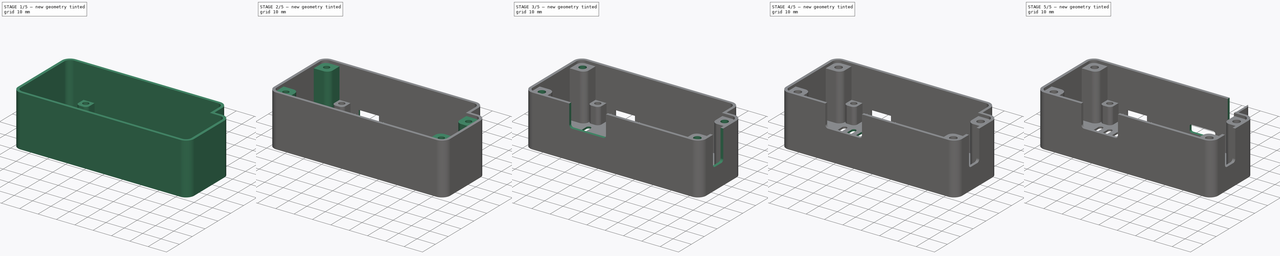
[diagram: build sequence overview — one tinted view per stage of 5, left to right]
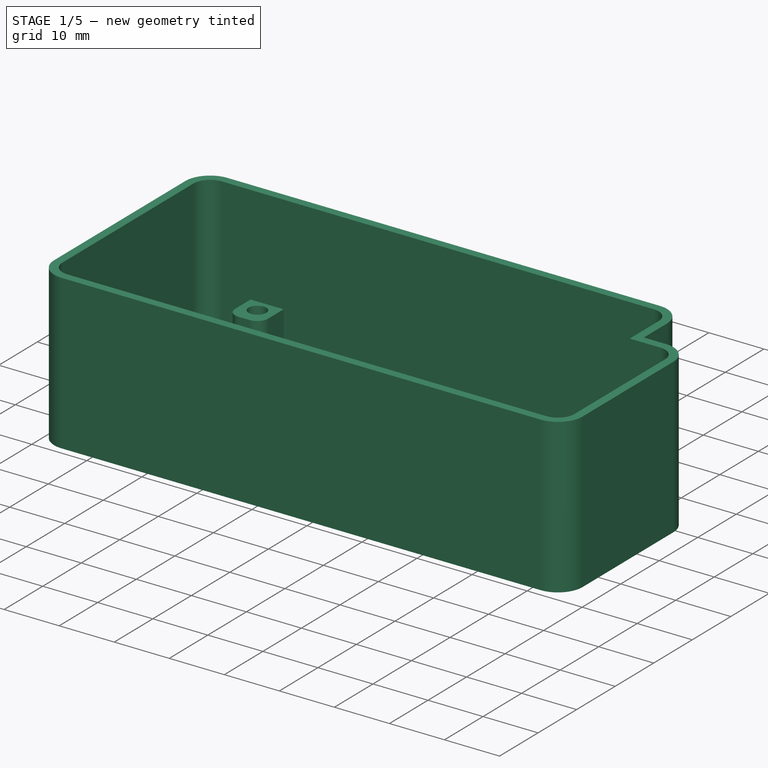
[diagram: stage 1 of 5 — iso view after this stage's code; geometry added in this stage tinted green]
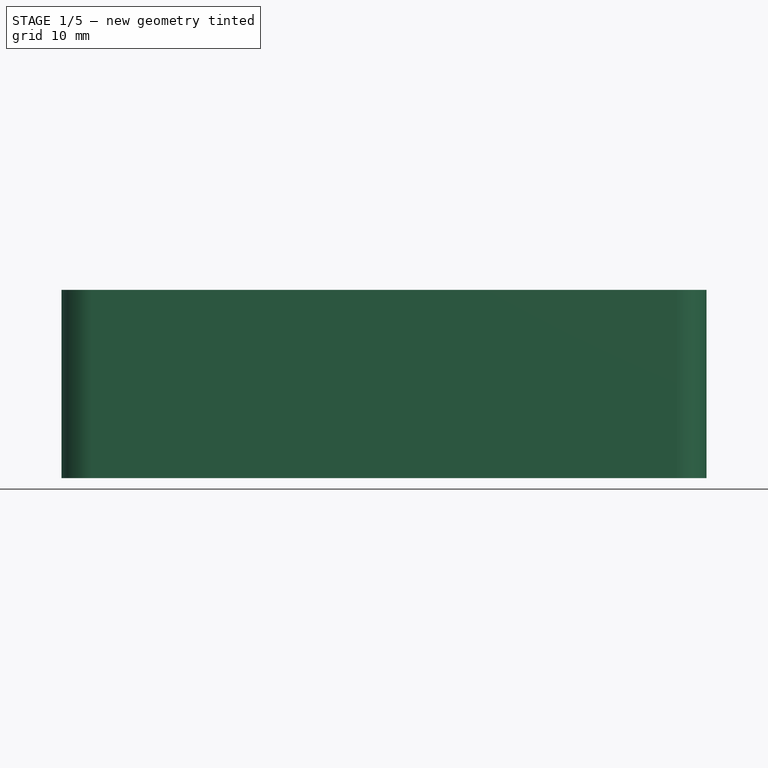
[diagram: stage 1 of 5 — front view after this stage's code; geometry added in this stage tinted green]
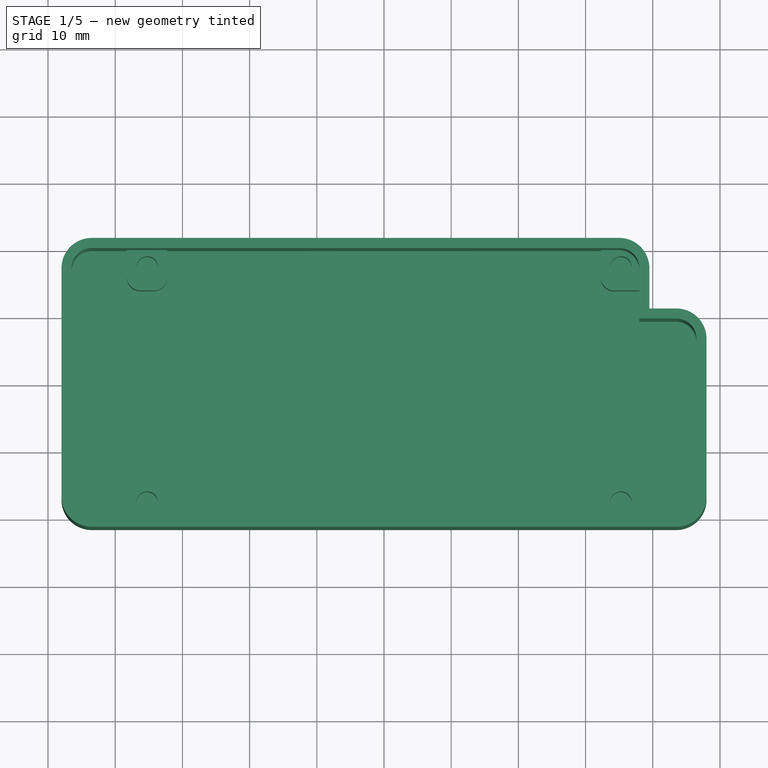
[diagram: stage 1 of 5 — top view after this stage's code; geometry added in this stage tinted green]
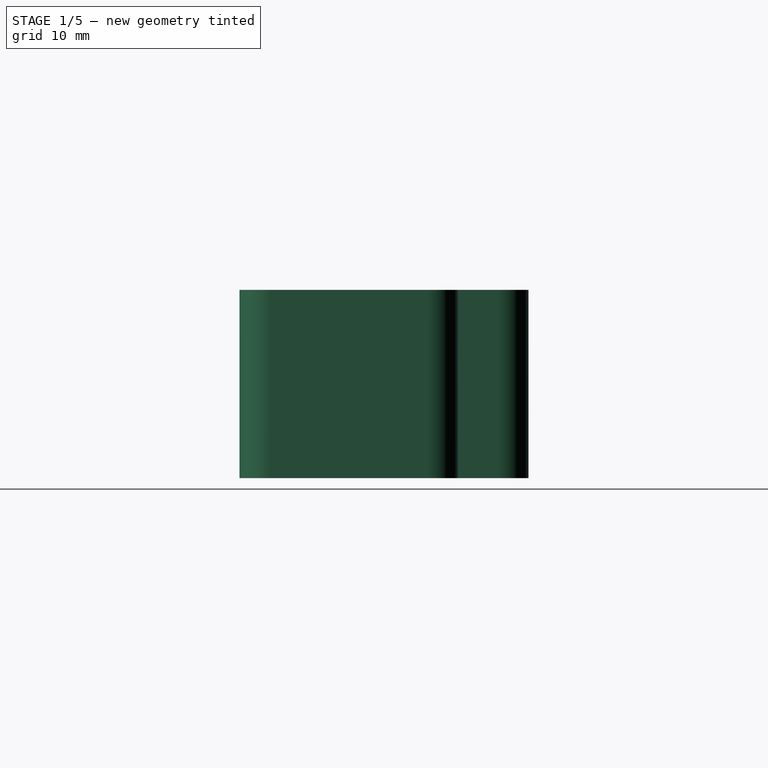
[diagram: stage 1 of 5 — right view after this stage's code; geometry added in this stage tinted green]
FCSTD DOCUMENT  (FreeCAD 0.20R29410 (Git))
Label: Full-Enclosure-BOTTOM
License: All rights reserved
LicenseURL: http://en.wikipedia.org/wiki/All_rights_reserved
objects: Sketcher::SketchObject×15, PartDesign::Pocket×11, PartDesign::Pad×4, PartDesign::LinearPattern×1, PartDesign::Body×1
note: 47 computed .brp shape members not serialized (recipe doc carries the construction recipe); baked Part::Feature solids carry a one-line shape summary decoded from their .brp

FEATURE [Sketcher::SketchObject] Sketch
  FullyConstrained = true
  MapMode = 5
  Support = -> [XY_Plane]
  sketch-geometry (23):
    g0: LineSegment StartX=-35 StartY=20 StartZ=0 EndX=35 EndY=20 EndZ=0
    g1: LineSegment StartX=38 StartY=17 StartZ=0 EndX=38 EndY=-17 EndZ=0
    g2: LineSegment StartX=35 StartY=-20 StartZ=0 EndX=-35 EndY=-20 EndZ=0
    g3: LineSegment StartX=-38 StartY=-17 StartZ=0 EndX=-38 EndY=17 EndZ=0
    g4: ArcOfCircle CenterX=-35 CenterY=17 CenterZ=0 NormalX=0 NormalY=0 NormalZ=1 AngleXU=0 Radius=3 StartAngle=1.5708 EndAngle=3.14159
    g5: ArcOfCircle CenterX=35 CenterY=17 CenterZ=0 NormalX=0 NormalY=0 NormalZ=1 AngleXU=0 Radius=3 StartAngle=-1.85292e-11 EndAngle=1.5708
    g6: ArcOfCircle CenterX=35 CenterY=-17 CenterZ=0 NormalX=0 NormalY=0 NormalZ=1 AngleXU=0 Radius=3 StartAngle=4.71239 EndAngle=6.28319
    g7: ArcOfCircle CenterX=-35 CenterY=-17 CenterZ=0 NormalX=0 NormalY=0 NormalZ=1 AngleXU=0 Radius=3 StartAngle=3.14159 EndAngle=4.71239
    g8: LineSegment StartX=48 StartY=6.5 StartZ=0 EndX=48 EndY=-17 EndZ=0
    g9: LineSegment StartX=43.5 StartY=-21.5 StartZ=0 EndX=-43.5 EndY=-21.5 EndZ=0
    g10: LineSegment StartX=-48 StartY=-17 StartZ=0 EndX=-48 EndY=17 EndZ=0
    g11: ArcOfCircle CenterX=43.5 CenterY=6.5 CenterZ=0 NormalX=0 NormalY=0 NormalZ=1 AngleXU=0 Radius=4.5 StartAngle=-2.0544e-12 EndAngle=1.5708
    g12: ArcOfCircle CenterX=43.5 CenterY=-17 CenterZ=0 NormalX=0 NormalY=0 NormalZ=1 AngleXU=0 Radius=4.5 StartAngle=4.71239 EndAngle=6.28319
    g13: GeomPoint X=48 Y=-21.5 Z=0
    g14: ArcOfCircle CenterX=-43.5 CenterY=-17 CenterZ=0 NormalX=0 NormalY=0 NormalZ=1 AngleXU=0 Radius=4.5 StartAngle=3.14159 EndAngle=4.71239
    g15: GeomPoint X=-48 Y=-21.5 Z=0
    g16: ArcOfCircle CenterX=-43.5 CenterY=17 CenterZ=0 NormalX=0 NormalY=0 NormalZ=1 AngleXU=0 Radius=4.5 StartAngle=1.5708 EndAngle=3.14159
    g17: GeomPoint X=-48 Y=21.5 Z=0
    g18: LineSegment StartX=43.5 StartY=11 StartZ=0 EndX=39.5 EndY=11 EndZ=0
    g19: LineSegment StartX=39.5 StartY=11 StartZ=0 EndX=39.5 EndY=17 EndZ=0
    g20: LineSegment StartX=35 StartY=21.5 StartZ=0 EndX=-43.5 EndY=21.5 EndZ=0
    g21: ArcOfCircle CenterX=35 CenterY=17 CenterZ=0 NormalX=0 NormalY=0 NormalZ=1 AngleXU=0 Radius=4.5 StartAngle=-2.2915e-12 EndAngle=1.5708
    g22: GeomPoint X=39.5 Y=21.5 Z=0
  constraints (53):
    c: Horizontal(g0)
    c: Horizontal(g2)
    c: Vertical(g1)
    c: Vertical(g3)
    c: Tangent(g3,g4) = 1.5708
    c: Tangent(g0,g4) = 1.5708
    c: Tangent(g0,g5) = 1.5708
    c: Tangent(g1,g5) = 1.5708
    c: Tangent(g2,g6) = 1.5708
    c: Tangent(g1,g6) = 1.5708
    c: Tangent(g3,g7) = 1.5708
    c: Tangent(g2,g7) = 1.5708
    c: Equal(g7,g4)
    c: Equal(g4,g5)
    c: Equal(g5,g6)
    c: Radius(g5) = 3
    c: Symmetric(g4,g6,g-1)
    c: DistanceY(g2,g0) = 40
    c: DistanceX(g3,g1) = 76
    c: Horizontal(g9)
    c: Vertical(g8)
    c: Vertical(g10)
    c: Symmetric(g17,g13,g-1)
    c: Tangent(g8,g11) = 1.5708
    c: PointOnObject(g13,g8)
    c: PointOnObject(g13,g9)
    c: Tangent(g8,g12) = 1.5708
    c: Tangent(g9,g12) = 1.5708
    c: PointOnObject(g15,g10)
    c: PointOnObject(g15,g9)
    c: Tangent(g10,g14) = 1.5708
    c: Tangent(g9,g14) = 1.5708
    c: PointOnObject(g17,g10)
    c: Tangent(g10,g16) = 1.5708
    c: Equal(g11,g12)
    c: Equal(g12,g14)
    c: Equal(g14,g16)
    c: Horizontal(g10,g3)
    c: DistanceX(g1,g8) = 10
    c: Vertical(g11,g11)
    c: Tangent(g11,g18) = -1.5708
    c: Coincident(g18,g19)
    c: Coincident(g16,g20)
    c: Horizontal(g20)
    c: Vertical(g19)
    c: PointOnObject(g22,g20)
    c: PointOnObject(g22,g19)
    c: Tangent(g20,g21) = -1.5708
    c: Tangent(g19,g21) = -1.5708
    c: Coincident(g21,g5)
    c: DistanceY(g0,g20) = 1.5
    c: DistanceY(g19,g19) = 6
    c: Symmetric(g16,g9,g-1)
FEATURE [PartDesign::Pad] Pad
  Direction = (0,0,1)
  Length = 28
  Length2 = 10
  Profile = -> Sketch
  ReferenceAxis = -> Sketch [N_Axis]
  Type = 0
FEATURE [Sketcher::SketchObject] Sketch001
  ExternalGeometry = -> [Pad]
  FullyConstrained = true
  MapMode = 5
  Placement = pos=(0,0,28) rot=(0,0,1;0rad)
  Support = -> [Pad]
  sketch-geometry (14):
    g0: LineSegment StartX=-43.5 StartY=20 StartZ=0 EndX=35 EndY=20 EndZ=0
    g1: LineSegment StartX=43.5 StartY=-20 StartZ=0 EndX=-43.5 EndY=-20 EndZ=0
    g2: LineSegment StartX=-46.5 StartY=-17 StartZ=0 EndX=-46.5 EndY=17 EndZ=0
    g3: ArcOfCircle CenterX=-43.5 CenterY=17 CenterZ=0 NormalX=0 NormalY=0 NormalZ=1 AngleXU=0 Radius=3 StartAngle=1.5708 EndAngle=3.14159
    g4: GeomPoint X=-46.5 Y=20 Z=0
    g5: ArcOfCircle CenterX=-43.5 CenterY=-17 CenterZ=0 NormalX=0 NormalY=0 NormalZ=1 AngleXU=0 Radius=3 StartAngle=3.14159 EndAngle=4.71239
    g6: GeomPoint X=-46.5 Y=-20 Z=0
    g7: ArcOfCircle CenterX=43.5 CenterY=-17 CenterZ=0 NormalX=0 NormalY=0 NormalZ=1 AngleXU=0 Radius=3 StartAngle=4.71239 EndAngle=6.28319
    g8: ArcOfCircle CenterX=35 CenterY=17 CenterZ=0 NormalX=0 NormalY=0 NormalZ=1 AngleXU=0 Radius=3 StartAngle=0 EndAngle=1.5708
    g9: LineSegment StartX=38 StartY=17 StartZ=0 EndX=38 EndY=9.5 EndZ=0
    g10: LineSegment StartX=38 StartY=9.5 StartZ=0 EndX=43.5 EndY=9.5 EndZ=0
    g11: LineSegment StartX=46.5 StartY=6.5 StartZ=0 EndX=46.5 EndY=-17 EndZ=0
    g12: ArcOfCircle CenterX=43.5 CenterY=6.5 CenterZ=0 NormalX=0 NormalY=0 NormalZ=1 AngleXU=0 Radius=3 StartAngle=0 EndAngle=1.5708
    g13: GeomPoint X=46.5 Y=9.5 Z=0
  constraints (30):
    c: Horizontal(g0)
    c: Horizontal(g1)
    c: Vertical(g2)
    c: PointOnObject(g4,g2)
    c: PointOnObject(g4,g0)
    c: Tangent(g2,g3) = 1.5708
    c: Tangent(g0,g3) = 1.5708
    c: PointOnObject(g6,g2)
    c: PointOnObject(g6,g1)
    c: Tangent(g2,g5) = 1.5708
    c: Tangent(g1,g5) = 1.5708
    c: Tangent(g1,g7) = 1.5708
    c: Tangent(g0,g8) = 1.5708
    c: DistanceY(g1,g0) = 40
    c: Symmetric(g3,g5,g-1)
    c: Horizontal(g7,g7)
    c: Horizontal(g8,g8)
    c: Tangent(g8,g9) = 1.5708
    c: Coincident(g9,g10)
    c: Horizontal(g10)
    c: Coincident(g11,g7)
    c: Vertical(g11)
    c: PointOnObject(g13,g10)
    c: PointOnObject(g13,g11)
    c: Tangent(g10,g12) = 1.5708
    c: Tangent(g11,g12) = 1.5708
    c: Coincident(g-3,g8)
    c: Coincident(g3,g-4)
    c: Coincident(g7,g-5)
    c: Coincident(g12,g-6)
FEATURE [PartDesign::Pocket] Pocket
  BaseFeature = -> Pad
  Direction = (0,0,-1)
  Length = 27
  Length2 = 5
  Profile = -> Sketch001
  ReferenceAxis = -> Sketch001 [N_Axis]
  Type = 0
FEATURE [Sketcher::SketchObject] Sketch002
  ExternalGeometry = -> [Pocket]
  FullyConstrained = true
  MapMode = 5
  Placement = pos=(0,0,1) rot=(0,0,1;0rad)
  Support = -> [Pocket]
  sketch-geometry (37):
    g0: LineSegment StartX=-38.25 StartY=20 StartZ=0 EndX=-32.25 EndY=20 EndZ=0
    g1: LineSegment StartX=-32.25 StartY=20 StartZ=0 EndX=-32.25 EndY=16 EndZ=0
    g2: LineSegment StartX=-34.25 StartY=14 StartZ=0 EndX=-36.25 EndY=14 EndZ=0
    g3: LineSegment StartX=-38.25 StartY=16 StartZ=0 EndX=-38.25 EndY=20 EndZ=0
    g4: LineSegment StartX=-36.25 StartY=-14 StartZ=0 EndX=-34.25 EndY=-14 EndZ=0
    g5: LineSegment StartX=-32.25 StartY=-16 StartZ=0 EndX=-32.25 EndY=-20 EndZ=0
    g6: LineSegment StartX=-32.25 StartY=-20 StartZ=0 EndX=-38.25 EndY=-20 EndZ=0
    g7: LineSegment StartX=-38.25 StartY=-20 StartZ=0 EndX=-38.25 EndY=-16 EndZ=0
    g8: LineSegment StartX=32.25 StartY=20 StartZ=0 EndX=35 EndY=20 EndZ=0
    g9: LineSegment StartX=38 StartY=17 StartZ=0 EndX=38 EndY=14 EndZ=0
    g10: LineSegment StartX=38 StartY=14 StartZ=0 EndX=34.25 EndY=14 EndZ=0
    g11: LineSegment StartX=32.25 StartY=16 StartZ=0 EndX=32.25 EndY=20 EndZ=0
    g12: LineSegment StartX=34.25 StartY=-14 StartZ=0 EndX=36.25 EndY=-14 EndZ=0
    g13: LineSegment StartX=38.25 StartY=-16 StartZ=0 EndX=38.25 EndY=-20 EndZ=0
    g14: LineSegment StartX=38.25 StartY=-20 StartZ=0 EndX=32.25 EndY=-20 EndZ=0
    g15: LineSegment StartX=32.25 StartY=-20 StartZ=0 EndX=32.25 EndY=-16 EndZ=0
    g16: ArcOfCircle CenterX=-36.25 CenterY=16 CenterZ=0 NormalX=0 NormalY=0 NormalZ=1 AngleXU=0 Radius=2 StartAngle=3.14159 EndAngle=4.71239
    g17: GeomPoint X=-38.25 Y=14 Z=0
    g18: ArcOfCircle CenterX=-34.25 CenterY=16 CenterZ=0 NormalX=0 NormalY=0 NormalZ=1 AngleXU=0 Radius=2 StartAngle=4.71239 EndAngle=6.28319
    g19: GeomPoint X=-32.25 Y=14 Z=0
    g20: ArcOfCircle CenterX=-36.25 CenterY=-16 CenterZ=0 NormalX=0 NormalY=0 NormalZ=1 AngleXU=0 Radius=2 StartAngle=1.5708 EndAngle=3.14159
    g21: GeomPoint X=-38.25 Y=-14 Z=0
    g22: ArcOfCircle CenterX=-34.25 CenterY=-16 CenterZ=0 NormalX=0 NormalY=0 NormalZ=1 AngleXU=0 Radius=2 StartAngle=0 EndAngle=1.5708
    g23: GeomPoint X=-32.25 Y=-14 Z=0
    g24: ArcOfCircle CenterX=34.25 CenterY=-16 CenterZ=0 NormalX=0 NormalY=0 NormalZ=1 AngleXU=0 Radius=2 StartAngle=1.5708 EndAngle=3.14159
    g25: GeomPoint X=32.25 Y=-14 Z=0
    g26: ArcOfCircle CenterX=36.25 CenterY=-16 CenterZ=0 NormalX=0 NormalY=0 NormalZ=1 AngleXU=0 Radius=2 StartAngle=-9e-16 EndAngle=1.5708
    g27: GeomPoint X=38.25 Y=-14 Z=0
    g28: ArcOfCircle CenterX=34.25 CenterY=16 CenterZ=0 NormalX=0 NormalY=0 NormalZ=1 AngleXU=0 Radius=2 StartAngle=3.14159 EndAngle=4.71239
    g29: GeomPoint X=32.25 Y=14 Z=0
    g30: ArcOfCircle CenterX=35 CenterY=17 CenterZ=0 NormalX=0 NormalY=0 NormalZ=1 AngleXU=0 Radius=3 StartAngle=0 EndAngle=1.5708
    g31: GeomPoint X=38 Y=20 Z=0
    g32: LineSegment StartX=-35.25 StartY=20 StartZ=0 EndX=-35.25 EndY=-20 EndZ=0
    g33: Circle CenterX=-35.25 CenterY=17.5 CenterZ=0 NormalX=0 NormalY=0 NormalZ=1 AngleXU=0 Radius=1.6
    g34: Circle CenterX=35.25 CenterY=17.5 CenterZ=0 NormalX=0 NormalY=0 NormalZ=1 AngleXU=0 Radius=1.6
    g35: Circle CenterX=-35.25 CenterY=-17.5 CenterZ=0 NormalX=0 NormalY=0 NormalZ=1 AngleXU=0 Radius=1.6
    g36: Circle CenterX=35.25 CenterY=-17.5 CenterZ=0 NormalX=0 NormalY=0 NormalZ=1 AngleXU=0 Radius=1.6
  constraints (88):
    c: Coincident(g0,g1)
    c: Coincident(g3,g0)
    c: Horizontal(g0)
    c: Horizontal(g2)
    c: Vertical(g1)
    c: Vertical(g3)
    c: Coincident(g5,g6)
    c: Coincident(g6,g7)
    c: Horizontal(g4)
    c: Horizontal(g6)
    c: Vertical(g5)
    c: Vertical(g7)
    c: Coincident(g9,g10)
    c: Coincident(g11,g8)
    c: Horizontal(g10)
    c: Vertical(g9)
    c: Vertical(g11)
    c: Coincident(g13,g14)
    c: Coincident(g14,g15)
    c: Horizontal(g12)
    c: Horizontal(g14)
    c: Vertical(g13)
    c: Vertical(g15)
    c: PointOnObject(g17,g3)
    c: PointOnObject(g17,g2)
    c: Tangent(g3,g16) = 1.5708
    c: Tangent(g2,g16) = 1.5708
    c: PointOnObject(g19,g1)
    c: PointOnObject(g19,g2)
    c: Tangent(g1,g18) = 1.5708
    c: Tangent(g2,g18) = 1.5708
    c: PointOnObject(g21,g7)
    c: PointOnObject(g21,g4)
    c: Tangent(g7,g20) = 1.5708
    c: Tangent(g4,g20) = 1.5708
    c: PointOnObject(g23,g4)
    c: PointOnObject(g23,g5)
    c: Tangent(g4,g22) = 1.5708
    c: Tangent(g5,g22) = 1.5708
    c: PointOnObject(g25,g15)
    c: PointOnObject(g25,g12)
    c: Tangent(g15,g24) = 1.5708
    c: Tangent(g12,g24) = 1.5708
    c: PointOnObject(g27,g12)
    c: PointOnObject(g27,g13)
    c: Tangent(g12,g26) = 1.5708
    c: Tangent(g13,g26) = 1.5708
    c: PointOnObject(g29,g11)
    c: PointOnObject(g29,g10)
    c: Tangent(g11,g28) = 1.5708
    c: Tangent(g10,g28) = 1.5708
    c: PointOnObject(g31,g8)
    c: PointOnObject(g31,g9)
    c: Tangent(g8,g30) = 1.5708
    c: Tangent(g9,g30) = 1.5708
    c: Coincident(g-3,g8)
    c: Coincident(g30,g-3)
    c: Equal(g18,g16)
    c: Equal(g16,g20)
    c: Equal(g20,g22)
    c: Equal(g22,g24)
    c: Equal(g24,g26)
    c: Equal(g26,g28)
    c: Vertical(g32)
    c: Symmetric(g6,g5,g32)
    c: Symmetric(g0,g0,g32)
    c: Equal(g6,g14)
    c: Horizontal(g14,g5)
    c: Vertical(g25,g29)
    c: Symmetric(g4,g2,g-1)
    c: PointOnObject(g5,g-4)
    c: PointOnObject(g0,g-5)
    c: Symmetric(g23,g25,g-2)
    c: Horizontal(g29,g19)
    c: DistanceY(g6,g4) = 6
    c: DistanceX(g6,g6) = 6
    c: Equal(g36,g35)
    c: Equal(g35,g33)
    c: Equal(g33,g34)
    c: Diameter(g35) = 3.2
    c: Symmetric(g33,g36,g-1)
    c: Symmetric(g34,g35,g-1)
    c: Vertical(g34,g36)
    c: Horizontal(g34,g33)
    c: PointOnObject(g35,g32)
    c: DistanceX(g33,g34) = 70.5
    c: DistanceY(g36,g30) = 34.5
    c: Radius(g22) = 2
FEATURE [PartDesign::Pad] Pad001
  BaseFeature = -> Pocket
  Direction = (0,0,1)
  Length = 9
  Length2 = 10
  Profile = -> Sketch002
  ReferenceAxis = -> Sketch002 [N_Axis]
  Type = 0
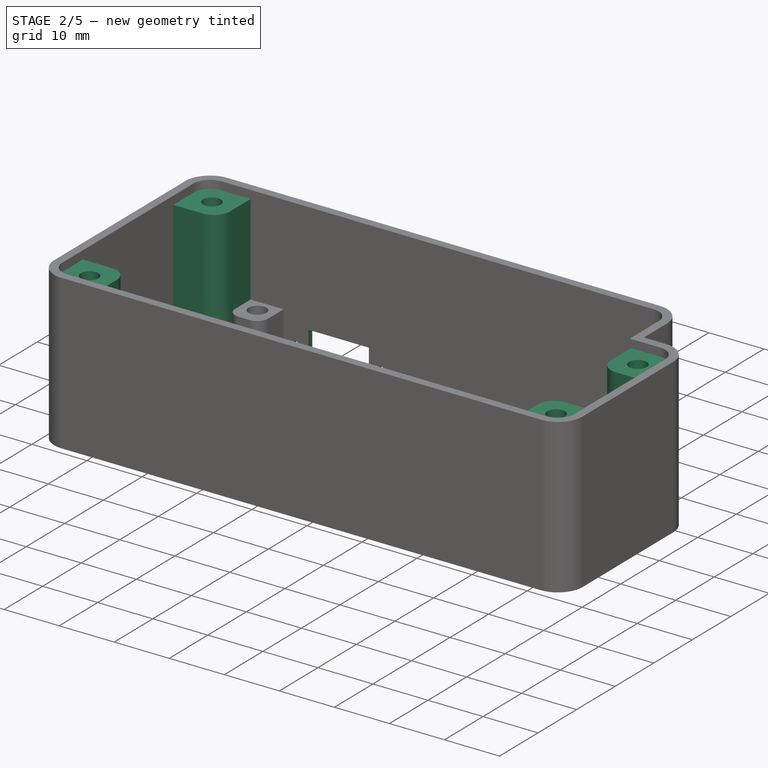
[diagram: stage 2 of 5 — iso view after this stage's code; geometry added in this stage tinted green]
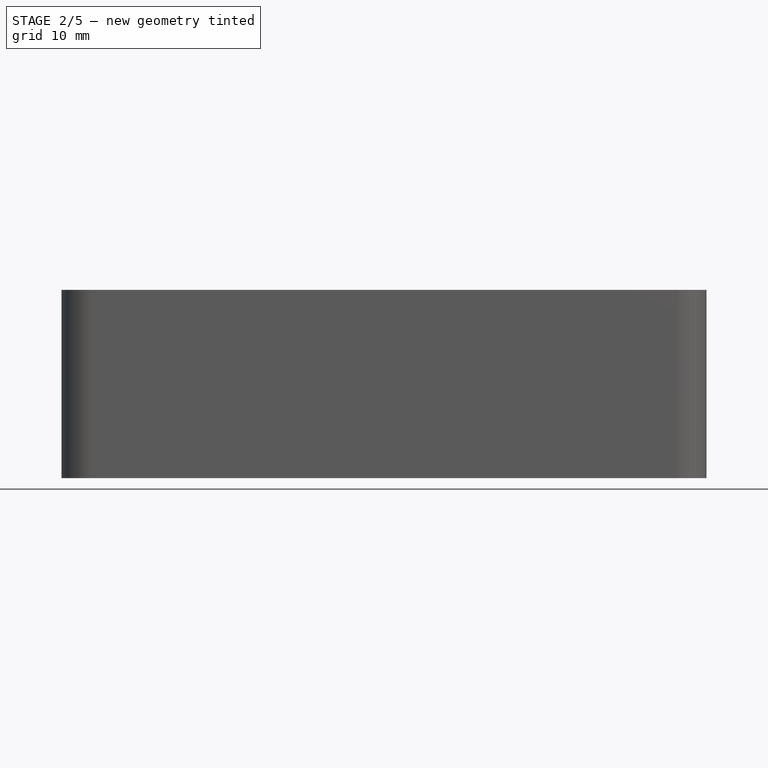
[diagram: stage 2 of 5 — front view after this stage's code; geometry added in this stage tinted green]
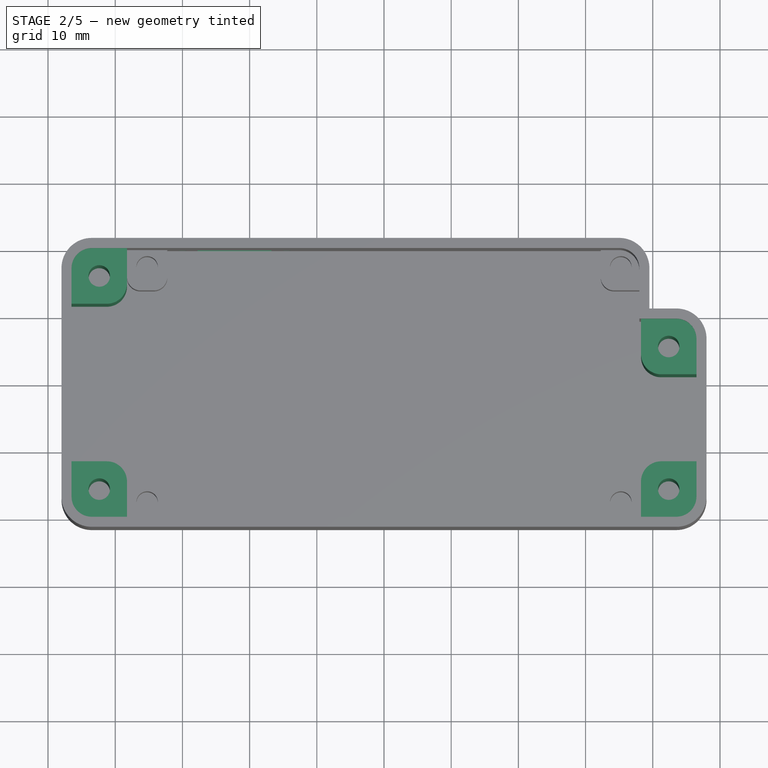
[diagram: stage 2 of 5 — top view after this stage's code; geometry added in this stage tinted green]
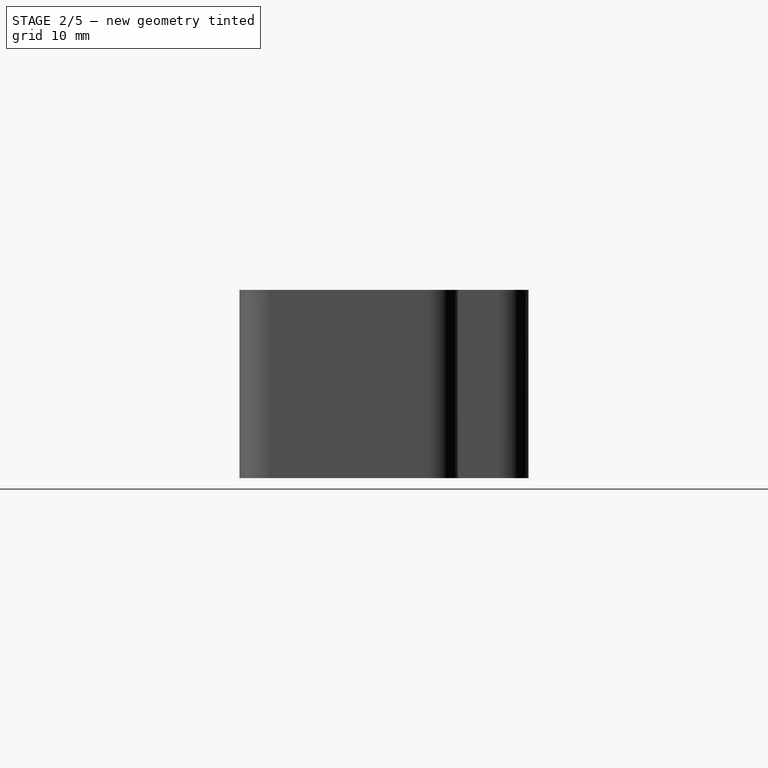
[diagram: stage 2 of 5 — right view after this stage's code; geometry added in this stage tinted green]
FEATURE [Sketcher::SketchObject] Sketch004
  ExternalGeometry = -> [Pad001,Sketch002]
  FullyConstrained = true
  MapMode = 5
  Placement = pos=(0,0,1) rot=(0,0,1;0rad)
  Support = -> [Pad001]
  sketch-geometry (38):
    g0: LineSegment StartX=-43.5 StartY=20 StartZ=0 EndX=-38.25 EndY=20 EndZ=0
    g1: LineSegment StartX=-38.25 StartY=20 StartZ=0 EndX=-38.25 EndY=14.7246 EndZ=0
    g2: LineSegment StartX=-41.25 StartY=11.7246 StartZ=0 EndX=-46.5 EndY=11.7246 EndZ=0
    g3: LineSegment StartX=-46.5 StartY=11.7246 StartZ=0 EndX=-46.5 EndY=17 EndZ=0
    g4: LineSegment StartX=-41.25 StartY=-11.7246 StartZ=0 EndX=-46.5 EndY=-11.7246 EndZ=0
    g5: LineSegment StartX=-46.5 StartY=-11.7246 StartZ=0 EndX=-46.5 EndY=-17 EndZ=0
    g6: LineSegment StartX=-43.5 StartY=-20 StartZ=0 EndX=-38.25 EndY=-20 EndZ=0
    g7: LineSegment StartX=-38.25 StartY=-20 StartZ=0 EndX=-38.25 EndY=-14.7246 EndZ=0
    g8: LineSegment StartX=41.25 StartY=-11.7246 StartZ=0 EndX=46.5 EndY=-11.7246 EndZ=0
    g9: LineSegment StartX=46.5 StartY=-11.7246 StartZ=0 EndX=46.5 EndY=-17 EndZ=0
    g10: LineSegment StartX=43.5 StartY=-20 StartZ=0 EndX=38.25 EndY=-20 EndZ=0
    g11: LineSegment StartX=38.25 StartY=-20 StartZ=0 EndX=38.25 EndY=-14.7246 EndZ=0
    g12: LineSegment StartX=46.5 StartY=6.5 StartZ=0 EndX=46.5 EndY=1.22459 EndZ=0
    g13: LineSegment StartX=46.5 StartY=1.22459 StartZ=0 EndX=41.25 EndY=1.22459 EndZ=0
    g14: LineSegment StartX=38.25 StartY=4.22459 StartZ=0 EndX=38.25 EndY=9.5 EndZ=0
    g15: ArcOfCircle CenterX=-43.5 CenterY=17 CenterZ=0 NormalX=0 NormalY=0 NormalZ=1 AngleXU=0 Radius=3 StartAngle=1.5708 EndAngle=3.14159
    g16: GeomPoint X=-46.5 Y=20 Z=0
    g17: ArcOfCircle CenterX=-41.25 CenterY=14.7246 CenterZ=0 NormalX=0 NormalY=0 NormalZ=1 AngleXU=0 Radius=3 StartAngle=4.71239 EndAngle=6.28319
    g18: GeomPoint X=-38.25 Y=11.7246 Z=0
    g19: ArcOfCircle CenterX=-43.5 CenterY=-17 CenterZ=0 NormalX=0 NormalY=0 NormalZ=1 AngleXU=0 Radius=3 StartAngle=3.14159 EndAngle=4.71239
    g20: GeomPoint X=-46.5 Y=-20 Z=0
    g21: ArcOfCircle CenterX=-41.25 CenterY=-14.7246 CenterZ=0 NormalX=0 NormalY=0 NormalZ=1 AngleXU=0 Radius=3 StartAngle=0 EndAngle=1.5708
    g22: GeomPoint X=-38.25 Y=-11.7246 Z=0
    g23: ArcOfCircle CenterX=41.25 CenterY=4.22459 CenterZ=0 NormalX=0 NormalY=0 NormalZ=1 AngleXU=0 Radius=3 StartAngle=3.14159 EndAngle=4.71239
    g24: GeomPoint X=38.25 Y=1.22459 Z=0
    g25: ArcOfCircle CenterX=43.5 CenterY=6.5 CenterZ=0 NormalX=0 NormalY=0 NormalZ=1 AngleXU=0 Radius=3 StartAngle=0 EndAngle=1.5708
    g26: GeomPoint X=46.5 Y=9.5 Z=0
    g27: ArcOfCircle CenterX=41.25 CenterY=-14.7246 CenterZ=0 NormalX=0 NormalY=0 NormalZ=1 AngleXU=0 Radius=3 StartAngle=1.5708 EndAngle=3.14159
    g28: GeomPoint X=38.25 Y=-11.7246 Z=0
    g29: ArcOfCircle CenterX=43.5 CenterY=-17 CenterZ=0 NormalX=0 NormalY=0 NormalZ=1 AngleXU=0 Radius=3 StartAngle=4.71239 EndAngle=6.28319
    g30: GeomPoint X=46.5 Y=-20 Z=0
    g31: LineSegment StartX=-42.375 StartY=20 StartZ=0 EndX=-42.375 EndY=-20 EndZ=0
    g32: LineSegment StartX=42.375 StartY=9.5 StartZ=0 EndX=42.375 EndY=-20 EndZ=0
    g33: Circle CenterX=-42.375 CenterY=15.8623 CenterZ=0 NormalX=0 NormalY=0 NormalZ=1 AngleXU=0 Radius=1.6
    g34: Circle CenterX=-42.375 CenterY=-15.8623 CenterZ=0 NormalX=0 NormalY=0 NormalZ=1 AngleXU=0 Radius=1.6
    g35: Circle CenterX=42.375 CenterY=-15.8623 CenterZ=0 NormalX=0 NormalY=0 NormalZ=1 AngleXU=0 Radius=1.6
    g36: Circle CenterX=42.375 CenterY=5.36229 CenterZ=0 NormalX=0 NormalY=0 NormalZ=1 AngleXU=0 Radius=1.6
    g37: LineSegment StartX=43.5 StartY=9.5 StartZ=0 EndX=38.25 EndY=9.5 EndZ=0
  constraints (87):
    c: Coincident(g0,g1)
    c: Coincident(g2,g3)
    c: Horizontal(g0)
    c: Horizontal(g2)
    c: Vertical(g1)
    c: Vertical(g3)
    c: Coincident(g4,g5)
    c: Coincident(g6,g7)
    c: Horizontal(g4)
    c: Horizontal(g6)
    c: Vertical(g5)
    c: Vertical(g7)
    c: Coincident(g8,g9)
    c: Coincident(g10,g11)
    c: Horizontal(g8)
    c: Horizontal(g10)
    c: Vertical(g11)
    c: Coincident(g12,g13)
    c: Horizontal(g13)
    c: Vertical(g12)
    c: Vertical(g14)
    c: PointOnObject(g16,g3)
    c: PointOnObject(g16,g0)
    c: Tangent(g3,g15) = 1.5708
    c: Tangent(g0,g15) = 1.5708
    c: PointOnObject(g18,g1)
    c: PointOnObject(g18,g2)
    c: Tangent(g1,g17) = 1.5708
    c: Tangent(g2,g17) = 1.5708
    c: PointOnObject(g20,g5)
    c: PointOnObject(g20,g6)
    c: Tangent(g5,g19) = -1.5708
    c: Tangent(g6,g19) = -1.5708
    c: PointOnObject(g22,g4)
    c: PointOnObject(g22,g7)
    c: Tangent(g4,g21) = -1.5708
    c: Tangent(g7,g21) = -1.5708
    c: PointOnObject(g24,g14)
    c: PointOnObject(g24,g13)
    c: Tangent(g14,g23) = 1.5708
    c: Tangent(g13,g23) = 1.5708
    c: PointOnObject(g26,g12)
    c: Tangent(g12,g25) = 1.5708
    c: PointOnObject(g28,g11)
    c: PointOnObject(g28,g8)
    c: Tangent(g11,g27) = 1.5708
    c: Tangent(g8,g27) = 1.5708
    c: PointOnObject(g30,g9)
    c: Tangent(g9,g29) = 1.5708
    c: Tangent(g10,g29) = 1.5708
    c: Equal(g21,g17)
    c: Equal(g17,g23)
    c: PointOnObject(g31,g6)
    c: PointOnObject(g32,g10)
    c: Symmetric(g16,g0,g31)
    c: Symmetric(g6,g20,g31)
    c: Symmetric(g30,g10,g32)
    c: Symmetric(g26,g14,g32)
    c: Symmetric(g10,g6,g-2)
    c: Coincident(g9,g-3)
    c: Coincident(g29,g-3)
    c: Coincident(g-4,g12)
    c: Symmetric(g4,g2,g-1)
    c: Equal(g7,g14)
    c: Equal(g11,g14)
    c: Equal(g35,g34)
    c: Equal(g34,g33)
    c: Equal(g33,g36)
    c: Diameter(g36) = 3.2
    c: Symmetric(g33,g35,g-1)
    c: Horizontal(g34,g35)
    c: Vertical(g34,g33)
    c: Vertical(g36,g35)
    c: Symmetric(g21,g19,g34)
    c: Coincident(g37,g-4)
    c: Coincident(g37,g14)
    c: Horizontal(g37)
    c: Vertical(g32)
    c: PointOnObject(g34,g31)
    c: PointOnObject(g-7,g7)
    c: Coincident(g19,g-8)
    c: PointOnObject(g19,g34)
    c: Equal(g21,g27)
    c: PointOnObject(g25,g36)
    c: Coincident(g0,g-6)
    c: Coincident(g25,g37)
    c: PointOnObject(g32,g37)
FEATURE [PartDesign::Pad] Pad002
  BaseFeature = -> Pad001
  Direction = (0,0,1)
  Length = 25.5
  Length2 = 10
  Profile = -> Sketch004
  ReferenceAxis = -> Sketch004 [N_Axis]
  Type = 0
FEATURE [Sketcher::SketchObject] Sketch005
  ExternalGeometry = -> [Pad002]
  FullyConstrained = true
  MapMode = 5
  Placement = pos=(0,21.5,0) rot=(0,0.707107,0.707107;3.14159rad)
  Support = -> [Pad002]
  sketch-geometry (4):
    g0: LineSegment StartX=12.25 StartY=7.5 StartZ=0 EndX=32.25 EndY=7.5 EndZ=0
    g1: LineSegment StartX=32.25 StartY=7.5 StartZ=0 EndX=32.25 EndY=2 EndZ=0
    g2: LineSegment StartX=32.25 StartY=2 StartZ=0 EndX=12.25 EndY=2 EndZ=0
    g3: LineSegment StartX=12.25 StartY=2 StartZ=0 EndX=12.25 EndY=7.5 EndZ=0
  constraints (12):
    c: Coincident(g2,g3)
    c: Coincident(g0,g3)
    c: Coincident(g1,g2)
    c: Coincident(g0,g1)
    c: DistanceX(g0,g0) = 20
    c: DistanceY(g1,g1) = 5.5
    c: DistanceY(g-1,g2) = 2
    c: Vertical(g-7,g1)
    c: Vertical(g1)
    c: Vertical(g3)
    c: Horizontal(g2)
    c: Horizontal(g0)
FEATURE [PartDesign::Pocket] Pocket001
  BaseFeature = -> Pad002
  Direction = (0,-1,2e-16)
  Length = 0.5
  Length2 = 5
  Profile = -> Sketch005
  ReferenceAxis = -> Sketch005 [N_Axis]
  Type = 0
FEATURE [Sketcher::SketchObject] Sketch006
  ExternalGeometry = -> [Pocket001]
  FullyConstrained = true
  MapMode = 5
  Placement = pos=(0,21.5,0) rot=(0,0.707107,0.707107;3.14159rad)
  Support = -> [Pocket001]
  sketch-geometry (8):
    g0: GeomPoint X=22.25 Y=4.75 Z=0
    g1: LineSegment StartX=16.75 StartY=7.85 StartZ=0 EndX=27.75 EndY=7.85 EndZ=0
    g2: LineSegment StartX=27.75 StartY=7.85 StartZ=0 EndX=27.75 EndY=1.65 EndZ=0
    g3: LineSegment StartX=27.75 StartY=1.65 StartZ=0 EndX=16.75 EndY=1.65 EndZ=0
    g4: LineSegment StartX=16.75 StartY=1.65 StartZ=0 EndX=16.75 EndY=7.85 EndZ=0
    g5: Circle CenterX=30 CenterY=4.75 CenterZ=0 NormalX=0 NormalY=0 NormalZ=1 AngleXU=0 Radius=0.625
    g6: Circle CenterX=14.5 CenterY=4.75 CenterZ=0 NormalX=0 NormalY=0 NormalZ=1 AngleXU=0 Radius=0.625
    g7: GeomPoint X=16.75 Y=2 Z=0
  constraints (18):
    c: Coincident(g1,g2)
    c: Coincident(g2,g3)
    c: Coincident(g3,g4)
    c: Coincident(g4,g1)
    c: Horizontal(g1)
    c: Horizontal(g3)
    c: Vertical(g2)
    c: Vertical(g4)
    c: Equal(g6,g5)
    c: Diameter(g5) = 1.25
    c: DistanceY(g2,g2) = 6.2
    c: DistanceX(g1,g1) = 11
    c: Symmetric(g1,g2,g0)
    c: Symmetric(g-3,g-4,g0)
    c: Symmetric(g6,g5,g0)
    c: PointOnObject(g7,g-4)
    c: PointOnObject(g7,g4)
    c: Symmetric(g7,g-3,g6)
FEATURE [PartDesign::Pocket] Pocket002
  BaseFeature = -> Pocket001
  Direction = (0,-1,2e-16)
  Length = 5
  Length2 = 5
  Profile = -> Sketch006
  ReferenceAxis = -> Sketch006 [N_Axis]
  Type = 0
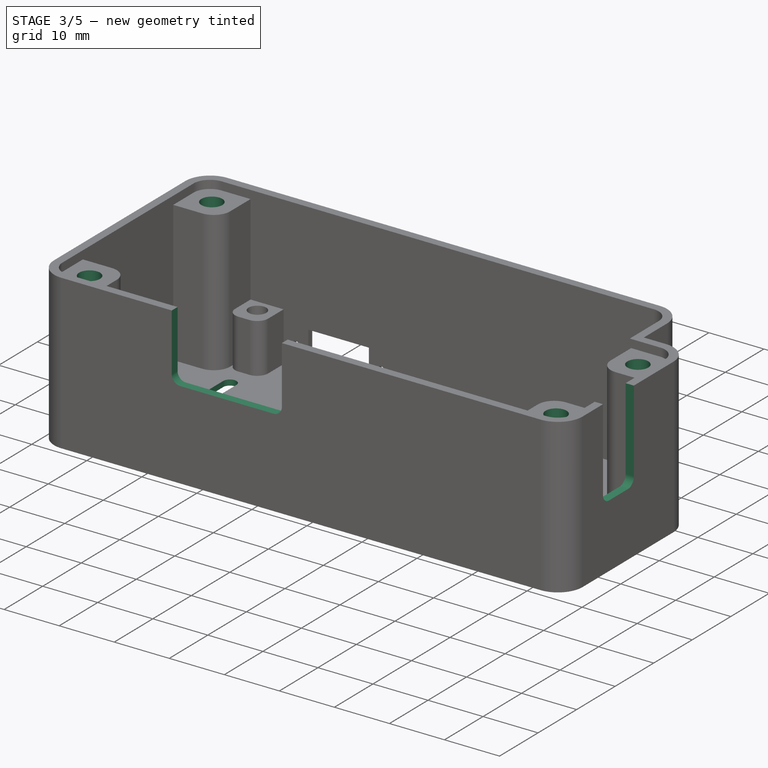
[diagram: stage 3 of 5 — iso view after this stage's code; geometry added in this stage tinted green]
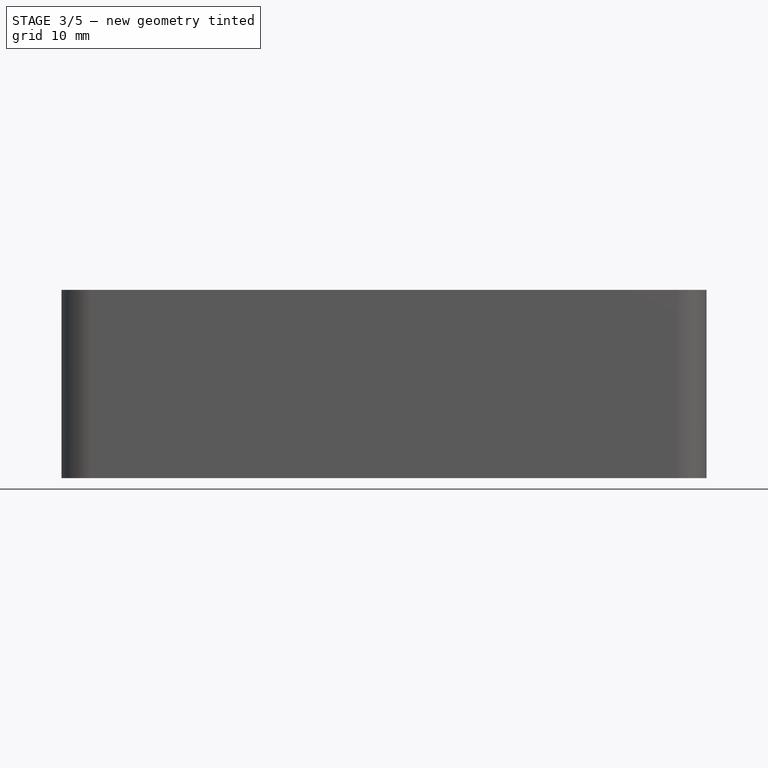
[diagram: stage 3 of 5 — front view after this stage's code; geometry added in this stage tinted green]
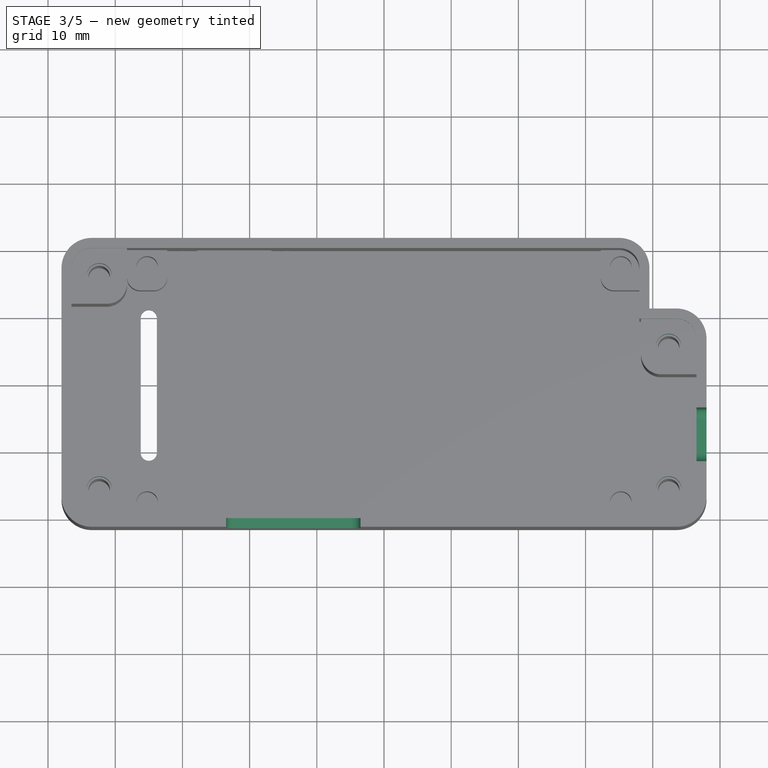
[diagram: stage 3 of 5 — top view after this stage's code; geometry added in this stage tinted green]
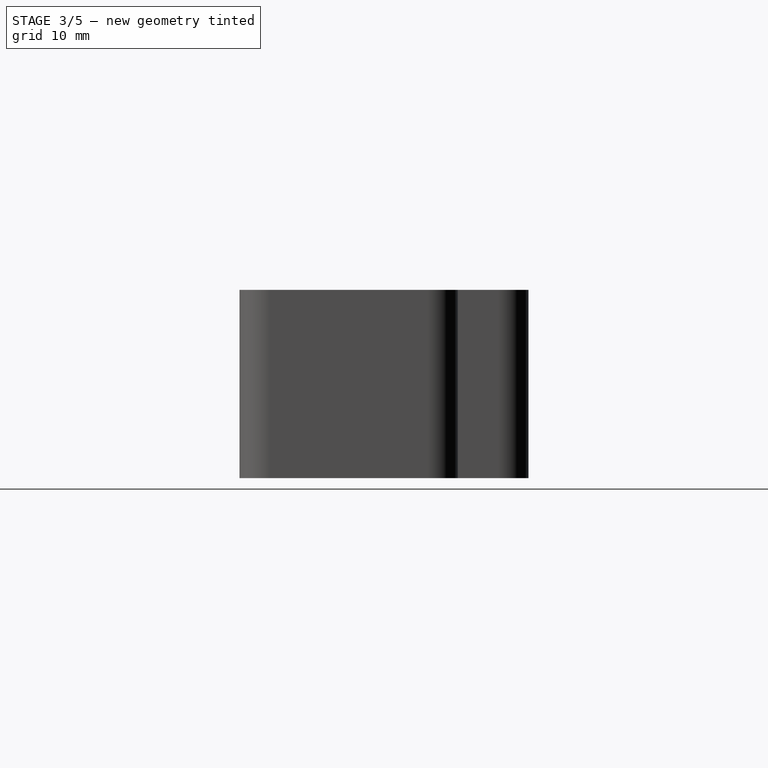
[diagram: stage 3 of 5 — right view after this stage's code; geometry added in this stage tinted green]
FEATURE [Sketcher::SketchObject] Sketch008
  ExternalGeometry = -> [Pocket002]
  FullyConstrained = true
  MapMode = 5
  Placement = pos=(0,-21.5,0) rot=(1,0,0;1.5708rad)
  Support = -> [Pocket002]
  sketch-geometry (10):
    g0: LineSegment StartX=-23.5 StartY=28 StartZ=0 EndX=-3.5 EndY=28 EndZ=0
    g1: LineSegment StartX=-3.5 StartY=28 StartZ=0 EndX=-3.5 EndY=17.5 EndZ=0
    g2: LineSegment StartX=-5 StartY=16 StartZ=0 EndX=-22 EndY=16 EndZ=0
    g3: LineSegment StartX=-23.5 StartY=17.5 StartZ=0 EndX=-23.5 EndY=28 EndZ=0
    g4: ArcOfCircle CenterX=-22 CenterY=17.5 CenterZ=0 NormalX=0 NormalY=0 NormalZ=1 AngleXU=0 Radius=1.5 StartAngle=3.14159 EndAngle=4.71239
    g5: GeomPoint X=-23.5 Y=16 Z=0
    g6: ArcOfCircle CenterX=-5 CenterY=17.5 CenterZ=0 NormalX=0 NormalY=0 NormalZ=1 AngleXU=0 Radius=1.5 StartAngle=4.71239 EndAngle=6.28319
    g7: GeomPoint X=-3.5 Y=16 Z=0
    g8: GeomPoint X=-13.5 Y=28 Z=0
    g9: LineSegment StartX=38 StartY=28 StartZ=0 EndX=-38 EndY=28 EndZ=0
  constraints (24):
    c: Coincident(g0,g1)
    c: Coincident(g3,g0)
    c: Horizontal(g0)
    c: Horizontal(g2)
    c: Vertical(g1)
    c: Vertical(g3)
    c: PointOnObject(g5,g3)
    c: PointOnObject(g5,g2)
    c: Tangent(g3,g4) = 1.5708
    c: Tangent(g2,g4) = 1.5708
    c: PointOnObject(g7,g1)
    c: PointOnObject(g7,g2)
    c: Tangent(g1,g6) = 1.5708
    c: Tangent(g2,g6) = 1.5708
    c: Equal(g6,g4)
    c: Diameter(g6) = 3
    c: Symmetric(g0,g0,g8)
    c: Symmetric(g9,g9,g-2)
    c: DistanceX(g9,g9) = 76
    c: DistanceX(g9,g8) = 24.5
    c: DistanceX(g0,g0) = 20
    c: PointOnObject(g9,g-3)
    c: PointOnObject(g0,g9)
    c: DistanceY(g7,g0) = 12
FEATURE [PartDesign::Pocket] Pocket004
  BaseFeature = -> Pocket002
  Direction = (0,1,-2e-16)
  Length = 5
  Length2 = 5
  Profile = -> Sketch008
  ReferenceAxis = -> Sketch008 [N_Axis]
  Type = 0
FEATURE [Sketcher::SketchObject] Sketch009
  ExternalGeometry = -> [Pocket004]
  FullyConstrained = true
  MapMode = 5
  Placement = pos=(48,0,0) rot=(0.57735,0.57735,0.57735;2.0944rad)
  Support = -> [Pocket004]
  sketch-geometry (8):
    g0: LineSegment StartX=-11.7246 StartY=28 StartZ=0 EndX=-3.72459 EndY=28 EndZ=0
    g1: LineSegment StartX=-3.72459 StartY=28 StartZ=0 EndX=-3.72459 EndY=13.1 EndZ=0
    g2: LineSegment StartX=-5.22459 StartY=11.6 StartZ=0 EndX=-10.2246 EndY=11.6 EndZ=0
    g3: LineSegment StartX=-11.7246 StartY=13.1 StartZ=0 EndX=-11.7246 EndY=28 EndZ=0
    g4: ArcOfCircle CenterX=-10.2246 CenterY=13.1 CenterZ=0 NormalX=0 NormalY=0 NormalZ=1 AngleXU=0 Radius=1.5 StartAngle=3.14159 EndAngle=4.71239
    g5: GeomPoint X=-11.7246 Y=11.6 Z=0
    g6: ArcOfCircle CenterX=-5.22459 CenterY=13.1 CenterZ=0 NormalX=0 NormalY=0 NormalZ=1 AngleXU=0 Radius=1.5 StartAngle=4.71239 EndAngle=6.28319
    g7: GeomPoint X=-3.72459 Y=11.6 Z=0
  constraints (20):
    c: Coincident(g0,g1)
    c: Coincident(g3,g0)
    c: Horizontal(g0)
    c: Horizontal(g2)
    c: Vertical(g1)
    c: Vertical(g3)
    c: PointOnObject(g5,g3)
    c: PointOnObject(g5,g2)
    c: Tangent(g3,g4) = 1.5708
    c: Tangent(g2,g4) = 1.5708
    c: PointOnObject(g7,g1)
    c: PointOnObject(g7,g2)
    c: Tangent(g1,g6) = 1.5708
    c: Tangent(g2,g6) = 1.5708
    c: Equal(g6,g4)
    c: Diameter(g6) = 3
    c: DistanceX(g0,g0) = 8
    c: PointOnObject(g0,g-4)
    c: Vertical(g-3,g0)
    c: DistanceY(g-5,g5) = 1.6
FEATURE [PartDesign::Pocket] Pocket005
  BaseFeature = -> Pocket004
  Direction = (-1,0,0)
  Length = 5
  Length2 = 5
  Profile = -> Sketch009
  ReferenceAxis = -> Sketch009 [N_Axis]
  Type = 0
FEATURE [Sketcher::SketchObject] Sketch011
  ExternalGeometry = -> [Pocket005]
  FullyConstrained = true
  MapMode = 5
  Placement = pos=(0,0,26.5) rot=(0,0,1;0rad)
  Support = -> [Pocket005]
  sketch-geometry (4):
    g0: Circle CenterX=42.375 CenterY=5.36229 CenterZ=0 NormalX=0 NormalY=0 NormalZ=1 AngleXU=0 Radius=1.9
    g1: Circle CenterX=42.375 CenterY=-15.8623 CenterZ=0 NormalX=0 NormalY=0 NormalZ=1 AngleXU=0 Radius=1.9
    g2: Circle CenterX=-42.375 CenterY=15.8623 CenterZ=0 NormalX=0 NormalY=0 NormalZ=1 AngleXU=0 Radius=1.9
    g3: Circle CenterX=-42.375 CenterY=-15.8623 CenterZ=0 NormalX=0 NormalY=0 NormalZ=1 AngleXU=0 Radius=1.9
  constraints (8):
    c: Symmetric(g3,g1,g-2)
    c: Equal(g2,g3)
    c: Equal(g3,g1)
    c: Equal(g1,g0)
    c: Diameter(g0) = 3.8
    c: Symmetric(g3,g2,g-1)
    c: Coincident(g2,g-4)
    c: Coincident(g0,g-5)
FEATURE [PartDesign::Pocket] Pocket007
  BaseFeature = -> Pocket005
  Direction = (0,0,-1)
  Length = 4
  Length2 = 5
  Profile = -> Sketch011
  ReferenceAxis = -> Sketch011 [N_Axis]
  Type = 0
FEATURE [Sketcher::SketchObject] Sketch013
  FullyConstrained = true
  MapMode = 5
  Placement = pos=(0,0,1) rot=(0,0,1;0rad)
  Support = -> [Pocket007]
  sketch-geometry (4):
    g0: ArcOfCircle CenterX=-35 CenterY=10 CenterZ=0 NormalX=0 NormalY=0 NormalZ=1 AngleXU=0 Radius=1.2 StartAngle=4e-16 EndAngle=3.14159
    g1: ArcOfCircle CenterX=-35 CenterY=-10 CenterZ=0 NormalX=0 NormalY=0 NormalZ=1 AngleXU=0 Radius=1.2 StartAngle=3.14159 EndAngle=6.28319
    g2: LineSegment StartX=-36.2 StartY=10 StartZ=0 EndX=-36.2 EndY=-10 EndZ=0
    g3: LineSegment StartX=-33.8 StartY=-10 StartZ=0 EndX=-33.8 EndY=10 EndZ=0
  constraints (9):
    c: Tangent(g0,g2) = -1.5708
    c: Tangent(g2,g1) = -1.5708
    c: Tangent(g1,g3) = -1.5708
    c: Tangent(g3,g0) = -1.5708
    c: Equal(g0,g1)
    c: Diameter(g0) = 2.4
    c: Symmetric(g0,g1,g-1)
    c: DistanceY(g3,g3) = 20
    c: DistanceX(g0,g-1) = 35
FEATURE [PartDesign::Pocket] Pocket009
  BaseFeature = -> Pocket007
  Direction = (0,0,-1)
  Length = 5
  Length2 = 5
  Profile = -> Sketch013
  ReferenceAxis = -> Sketch013 [N_Axis]
  Type = 0
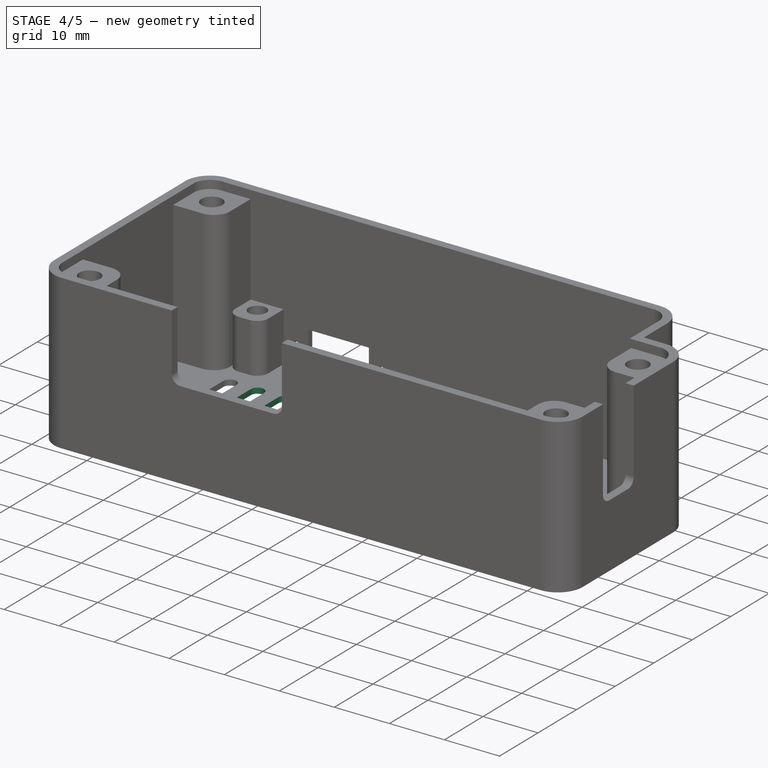
[diagram: stage 4 of 5 — iso view after this stage's code; geometry added in this stage tinted green]
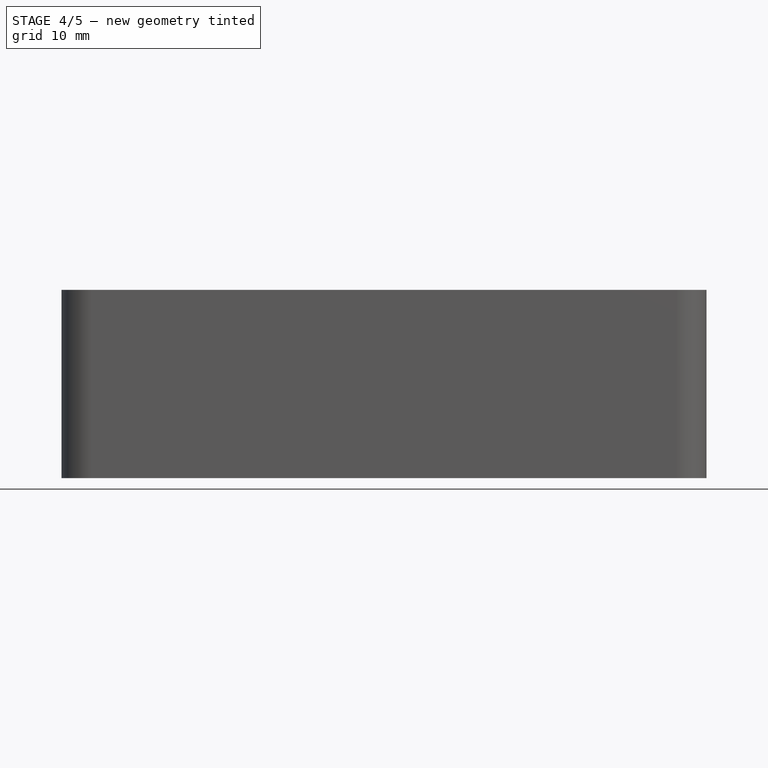
[diagram: stage 4 of 5 — front view after this stage's code; geometry added in this stage tinted green]
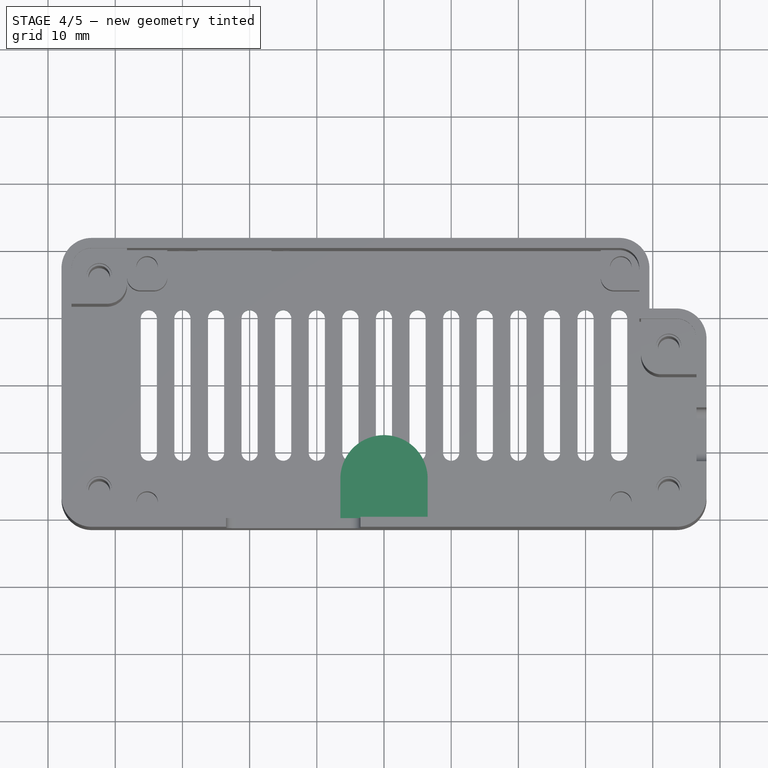
[diagram: stage 4 of 5 — top view after this stage's code; geometry added in this stage tinted green]
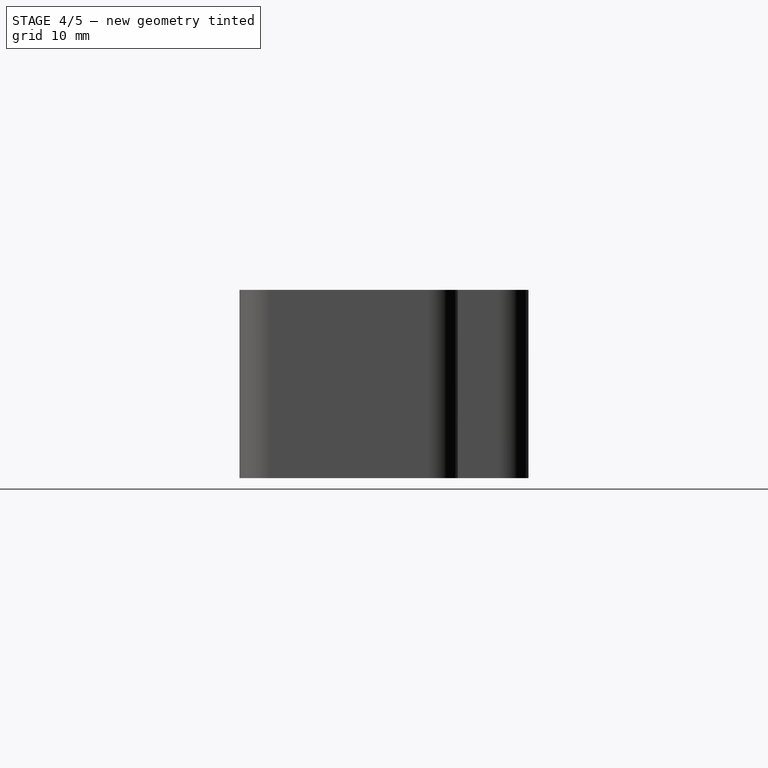
[diagram: stage 4 of 5 — right view after this stage's code; geometry added in this stage tinted green]
FEATURE [PartDesign::LinearPattern] LinearPattern
  BaseFeature = -> Pocket009
  Direction = -> Sketch013 [H_Axis]
  Length = 70
  Occurrences = 15
  Originals = -> [Pocket009]
FEATURE [Sketcher::SketchObject] Sketch014
  ExternalGeometry = -> [LinearPattern]
  FullyConstrained = true
  MapMode = 5
  Placement = pos=(0,0,0) rot=(1,0,0;3.14159rad)
  Support = -> [LinearPattern]
  sketch-geometry (5):
    g0: ArcOfCircle CenterX=0 CenterY=14 CenterZ=0 NormalX=0 NormalY=0 NormalZ=1 AngleXU=0 Radius=6.5 StartAngle=3.14159 EndAngle=6.28319
    g1: LineSegment StartX=-6.5 StartY=21.5 StartZ=0 EndX=-6.5 EndY=14 EndZ=0
    g2: LineSegment StartX=6.5 StartY=14 StartZ=0 EndX=6.5 EndY=21.5 EndZ=0
    g3: LineSegment StartX=-6.5 StartY=21.5 StartZ=0 EndX=6.5 EndY=21.5 EndZ=0
    g4: GeomPoint X=0 Y=7.5 Z=0
  constraints (13):
    c: Tangent(g1,g0) = -1.5708
    c: Tangent(g0,g2) = -1.5708
    c: Vertical(g1)
    c: Coincident(g3,g1)
    c: Coincident(g3,g2)
    c: Horizontal(g3)
    c: DistanceX(g3,g3) = 13
    c: Vertical(g2)
    c: PointOnObject(g4,g0)
    c: DistanceY(g4,g2) = 14
    c: PointOnObject(g0,g-2)
    c: PointOnObject(g2,g-5)
    c: Vertical(g4,g0)
FEATURE [PartDesign::Pad] Pad003
  BaseFeature = -> LinearPattern
  Direction = (0,0,-1)
  Length = 7.5
  Length2 = 10
  Profile = -> Sketch014
  ReferenceAxis = -> Sketch014 [N_Axis]
  Reversed = true
  Type = 0
FEATURE [Sketcher::SketchObject] Sketch015
  ExternalGeometry = -> [Pad003]
  FullyConstrained = true
  MapMode = 5
  Placement = pos=(0,0,0) rot=(1,0,0;3.14159rad)
  Support = -> [Pad003]
  sketch-geometry (1):
    g0: Circle CenterX=0 CenterY=14 CenterZ=0 NormalX=0 NormalY=0 NormalZ=1 AngleXU=0 Radius=4
  constraints (2):
    c: Diameter(g0) = 8
    c: Coincident(g-3,g0)
FEATURE [PartDesign::Pocket] Pocket010
  BaseFeature = -> Pad003
  Direction = (0,0,1)
  Length = 6
  Length2 = 5
  Profile = -> Sketch015
  ReferenceAxis = -> Sketch015 [N_Axis]
  Type = 0
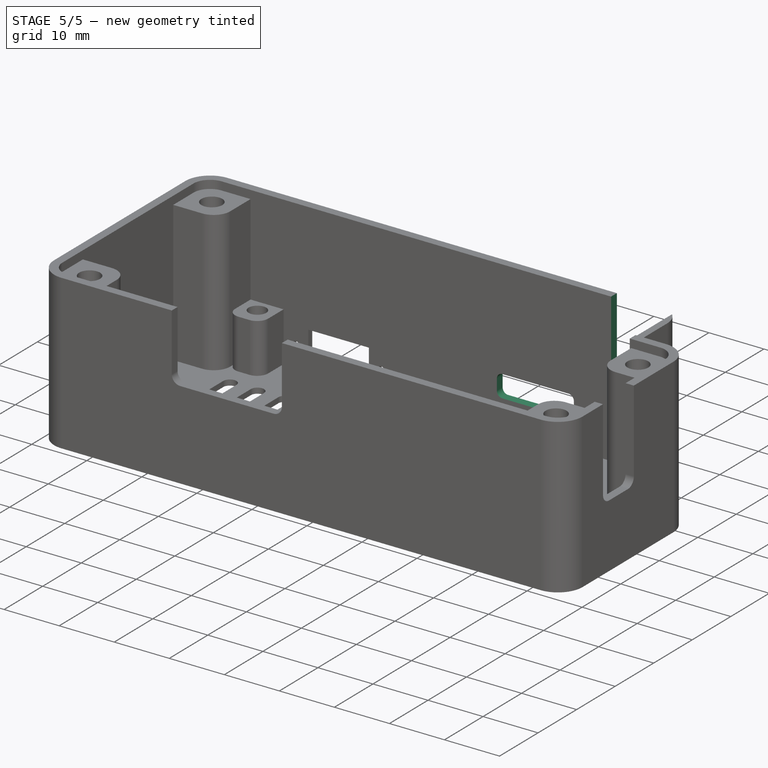
[diagram: stage 5 of 5 — iso view after this stage's code; geometry added in this stage tinted green]
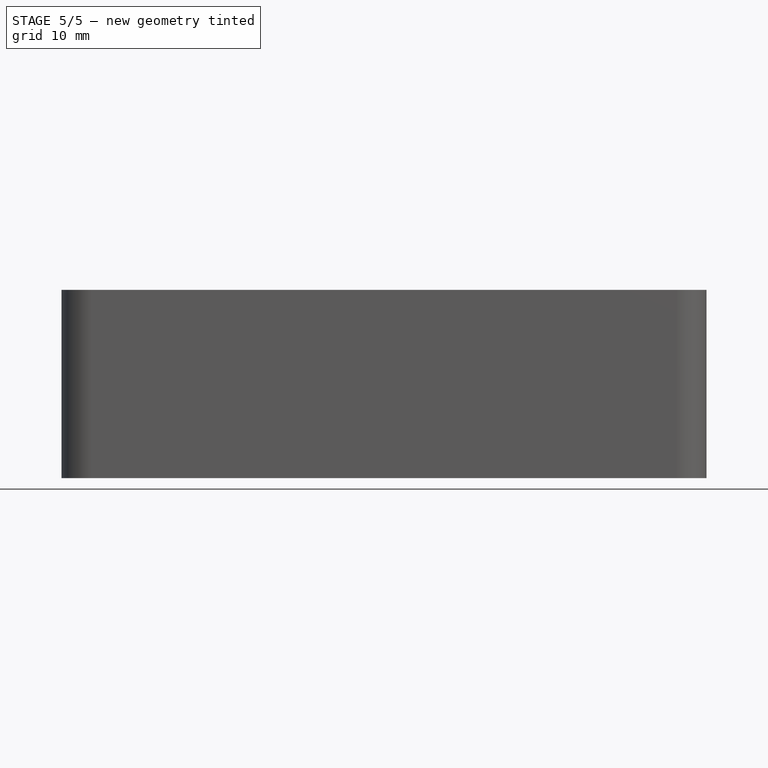
[diagram: stage 5 of 5 — front view after this stage's code; geometry added in this stage tinted green]
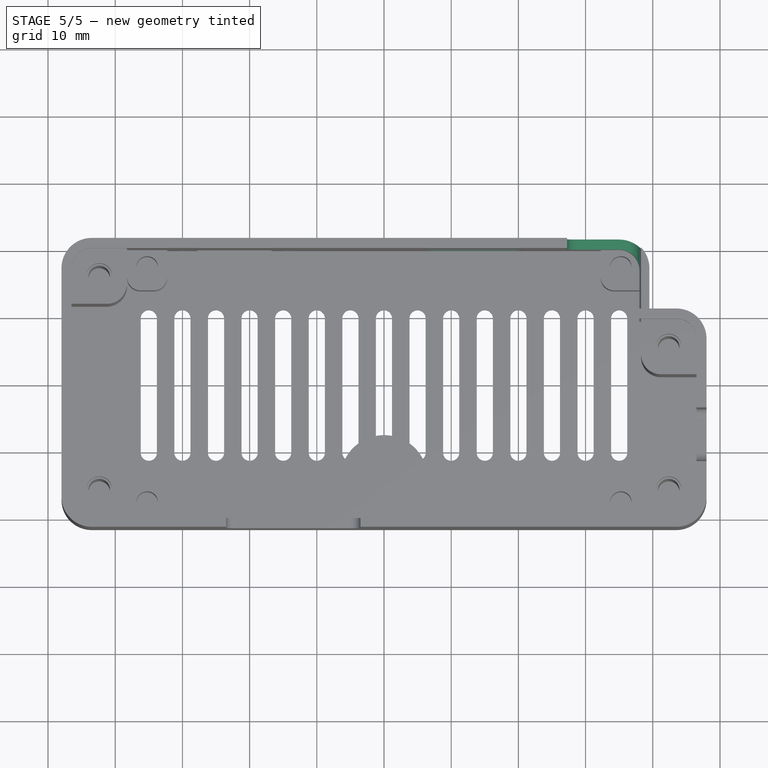
[diagram: stage 5 of 5 — top view after this stage's code; geometry added in this stage tinted green]
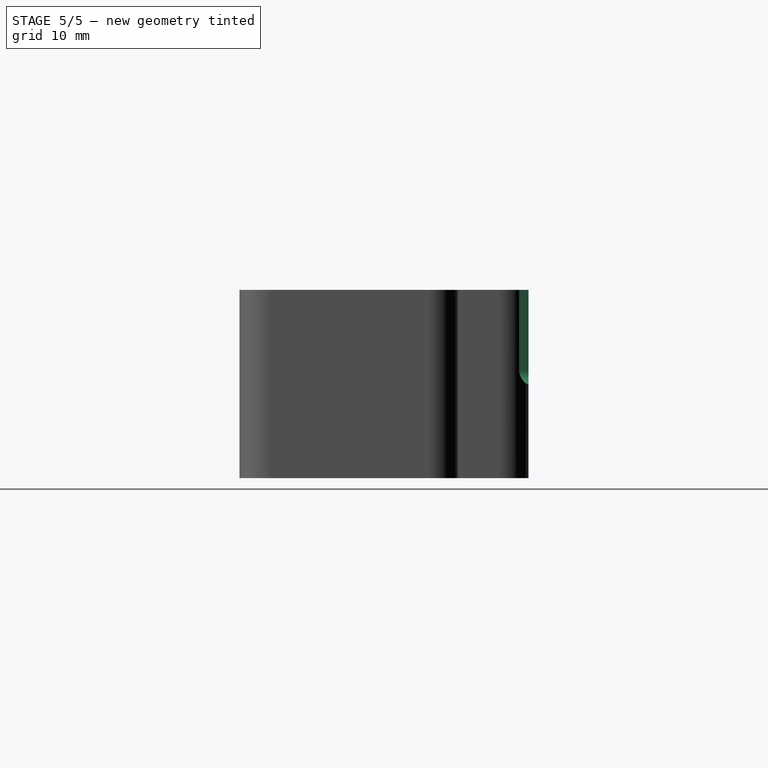
[diagram: stage 5 of 5 — right view after this stage's code; geometry added in this stage tinted green]
FEATURE [Sketcher::SketchObject] Sketch016
  ExternalGeometry = -> [Pocket010,Sketch015]
  FullyConstrained = true
  MapMode = 5
  Placement = pos=(0,0,0) rot=(1,0,0;3.14159rad)
  Support = -> [Pocket010]
  sketch-geometry (1):
    g0: Circle CenterX=0 CenterY=14 CenterZ=0 NormalX=0 NormalY=0 NormalZ=1 AngleXU=0 Radius=4.2
  constraints (2):
    c: Diameter(g0) = 8.4
    c: Coincident(g0,g-5)
FEATURE [PartDesign::Pocket] Pocket011
  BaseFeature = -> Pocket010
  Direction = (0,0,1)
  Length = 4
  Length2 = 5
  Profile = -> Sketch016
  ReferenceAxis = -> Sketch016 [N_Axis]
  Type = 0
FEATURE [Sketcher::SketchObject] Sketch018
  FullyConstrained = true
  MapMode = 5
  Placement = pos=(0,21.5,0) rot=(0,0.707107,0.707107;3.14159rad)
  Support = -> [Pocket011]
  sketch-geometry (13):
    g0: LineSegment StartX=-19.5 StartY=10 StartZ=0 EndX=-7.5 EndY=10 EndZ=0
    g1: LineSegment StartX=-6.5 StartY=9 StartZ=0 EndX=-6.5 EndY=7 EndZ=0
    g2: LineSegment StartX=-7.5 StartY=6 StartZ=0 EndX=-19.5 EndY=6 EndZ=0
    g3: LineSegment StartX=-20.5 StartY=7 StartZ=0 EndX=-20.5 EndY=9 EndZ=0
    g4: ArcOfCircle CenterX=-19.5 CenterY=9 CenterZ=0 NormalX=0 NormalY=0 NormalZ=1 AngleXU=0 Radius=1 StartAngle=1.5708 EndAngle=3.14159
    g5: GeomPoint X=-20.5 Y=10 Z=0
    g6: ArcOfCircle CenterX=-19.5 CenterY=7 CenterZ=0 NormalX=0 NormalY=0 NormalZ=1 AngleXU=0 Radius=1 StartAngle=3.14159 EndAngle=4.71239
    g7: GeomPoint X=-20.5 Y=6 Z=0
    g8: ArcOfCircle CenterX=-7.5 CenterY=9 CenterZ=0 NormalX=0 NormalY=0 NormalZ=1 AngleXU=0 Radius=1 StartAngle=-9e-16 EndAngle=1.5708
    g9: GeomPoint X=-6.5 Y=10 Z=0
    g10: ArcOfCircle CenterX=-7.5 CenterY=7 CenterZ=0 NormalX=0 NormalY=0 NormalZ=1 AngleXU=0 Radius=1 StartAngle=4.71239 EndAngle=6.28319
    g11: GeomPoint X=-6.5 Y=6 Z=0
    g12: GeomPoint X=-13.5 Y=10 Z=0
  constraints (29):
    c: Horizontal(g0)
    c: Horizontal(g2)
    c: Vertical(g1)
    c: Vertical(g3)
    c: PointOnObject(g5,g3)
    c: PointOnObject(g5,g0)
    c: Tangent(g3,g4) = 1.5708
    c: Tangent(g0,g4) = 1.5708
    c: PointOnObject(g7,g3)
    c: PointOnObject(g7,g2)
    c: Tangent(g3,g6) = 1.5708
    c: Tangent(g2,g6) = 1.5708
    c: PointOnObject(g9,g0)
    c: PointOnObject(g9,g1)
    c: Tangent(g0,g8) = 1.5708
    c: Tangent(g1,g8) = 1.5708
    c: PointOnObject(g11,g1)
    c: PointOnObject(g11,g2)
    c: Tangent(g1,g10) = 1.5708
    c: Tangent(g2,g10) = 1.5708
    c: Equal(g10,g8)
    c: Equal(g8,g4)
    c: Equal(g4,g6)
    c: Radius(g4) = 1
    c: DistanceY(g2,g0) = 4
    c: DistanceX(g5,g9) = 14
    c: Symmetric(g0,g0,g12)
    c: DistanceX(g12,g-1) = 13.5
    c: DistanceY(g-1,g9) = 10
FEATURE [PartDesign::Pocket] Pocket013
  BaseFeature = -> Pocket011
  Direction = (0,-1,2e-16)
  Length = 5
  Length2 = 5
  Profile = -> Sketch018
  ReferenceAxis = -> Sketch018 [N_Axis]
  Type = 0
FEATURE [Sketcher::SketchObject] Sketch019
  ExternalGeometry = -> [Pocket013]
  FullyConstrained = true
  MapMode = 5
  Placement = pos=(0,21.5,0) rot=(0,0.707107,0.707107;3.14159rad)
  Support = -> [Pocket013]
  sketch-geometry (8):
    g0: LineSegment StartX=-27.25 StartY=28 StartZ=0 EndX=-38.25 EndY=28 EndZ=0
    g1: LineSegment StartX=-38.25 StartY=28 StartZ=0 EndX=-38.25 EndY=16 EndZ=0
    g2: LineSegment StartX=-36.25 StartY=14 StartZ=0 EndX=-29.25 EndY=14 EndZ=0
    g3: LineSegment StartX=-27.25 StartY=16 StartZ=0 EndX=-27.25 EndY=28 EndZ=0
    g4: ArcOfCircle CenterX=-29.25 CenterY=16 CenterZ=0 NormalX=0 NormalY=0 NormalZ=1 AngleXU=0 Radius=2 StartAngle=4.71239 EndAngle=6.28319
    g5: GeomPoint X=-27.25 Y=14 Z=0
    g6: ArcOfCircle CenterX=-36.25 CenterY=16 CenterZ=0 NormalX=0 NormalY=0 NormalZ=1 AngleXU=0 Radius=2 StartAngle=3.14159 EndAngle=4.71239
    g7: GeomPoint X=-38.25 Y=14 Z=0
  constraints (20):
    c: Coincident(g0,g1)
    c: Coincident(g3,g0)
    c: Horizontal(g0)
    c: Horizontal(g2)
    c: Vertical(g1)
    c: Vertical(g3)
    c: PointOnObject(g5,g3)
    c: PointOnObject(g5,g2)
    c: Tangent(g3,g4) = -1.5708
    c: Tangent(g2,g4) = -1.5708
    c: PointOnObject(g7,g1)
    c: PointOnObject(g7,g2)
    c: Tangent(g1,g6) = -1.5708
    c: Tangent(g2,g6) = -1.5708
    c: Equal(g6,g4)
    c: Radius(g4) = 2
    c: DistanceY(g5,g0) = 14
    c: DistanceX(g-5,g3) = 5
    c: Horizontal(g0,g-4)
    c: Vertical(g0,g-6)
FEATURE [PartDesign::Pocket] Pocket014
  BaseFeature = -> Pocket013
  Direction = (0,-1,2e-16)
  Length = 10.5
  Length2 = 5
  Profile = -> Sketch019
  ReferenceAxis = -> Sketch019 [N_Axis]
  Type = 0
FEATURE [PartDesign::Body] Body
  Group = -> [Sketch,Pad,Sketch001,Pocket,Sketch002,Pad001,Sketch004,Pad002,Sketch005,Pocket001,Sketch006,Pocket002,Sketch008,Pocket004,Sketch009,Pocket005,Sketch011,Pocket007,Sketch013,Pocket009,LinearPattern,Sketch014,Pad003,Sketch015,Pocket010,Sketch016,Pocket011,Sketch018,Pocket013,Sketch019,Pocket014]
  Origin = -> Origin
  Tip = -> Pocket014
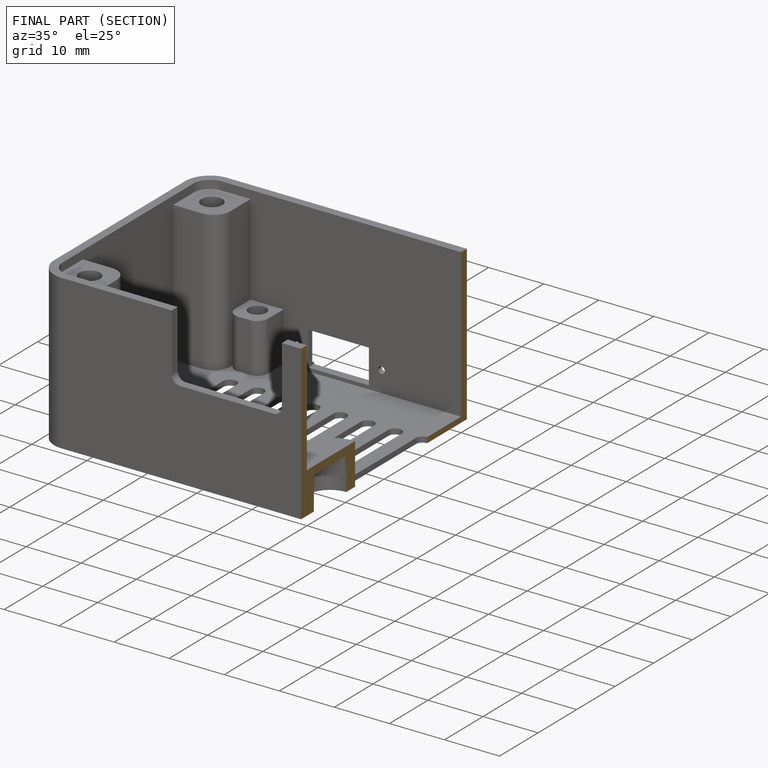
[diagram: finished part — half-section view (interior)]
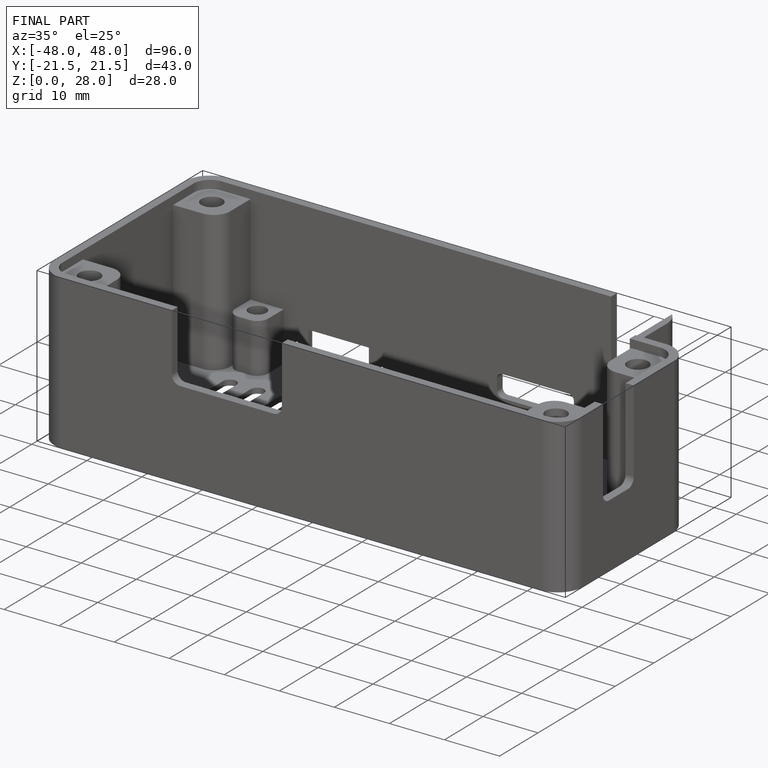
[diagram: finished part — iso view with bounding-box wireframe]
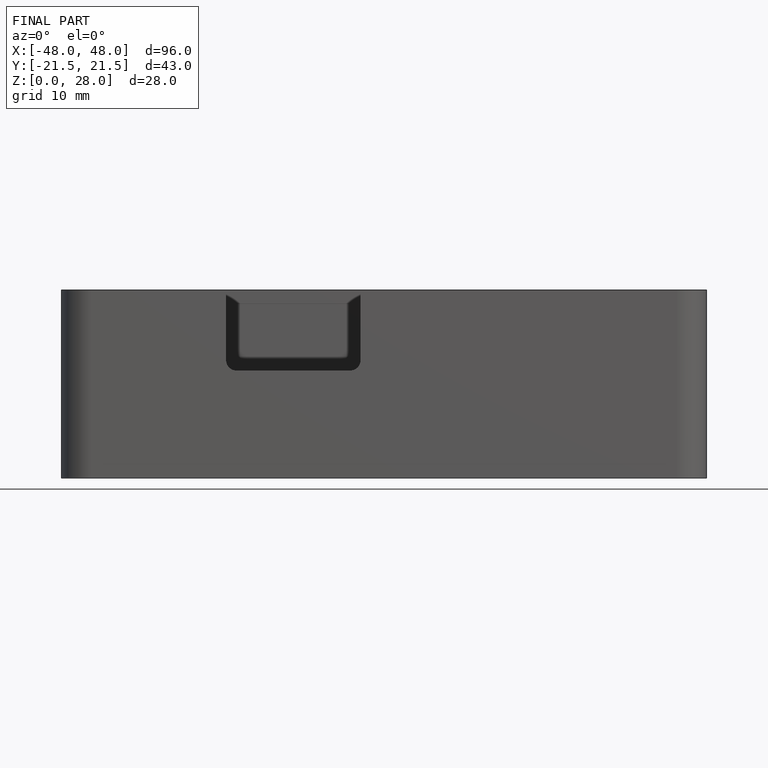
[diagram: finished part — front view with bounding-box wireframe]
